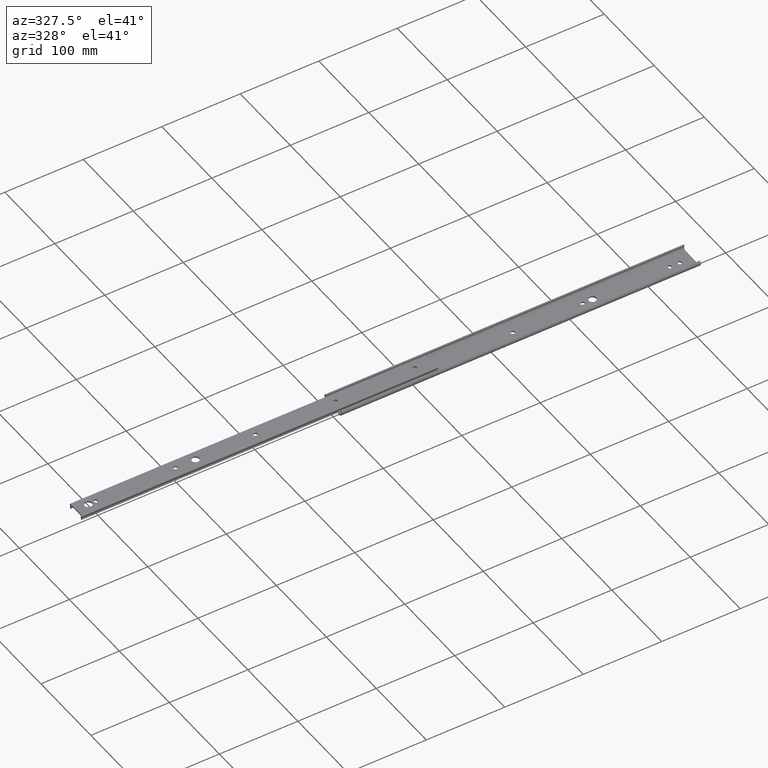
[diagram: clean part render]
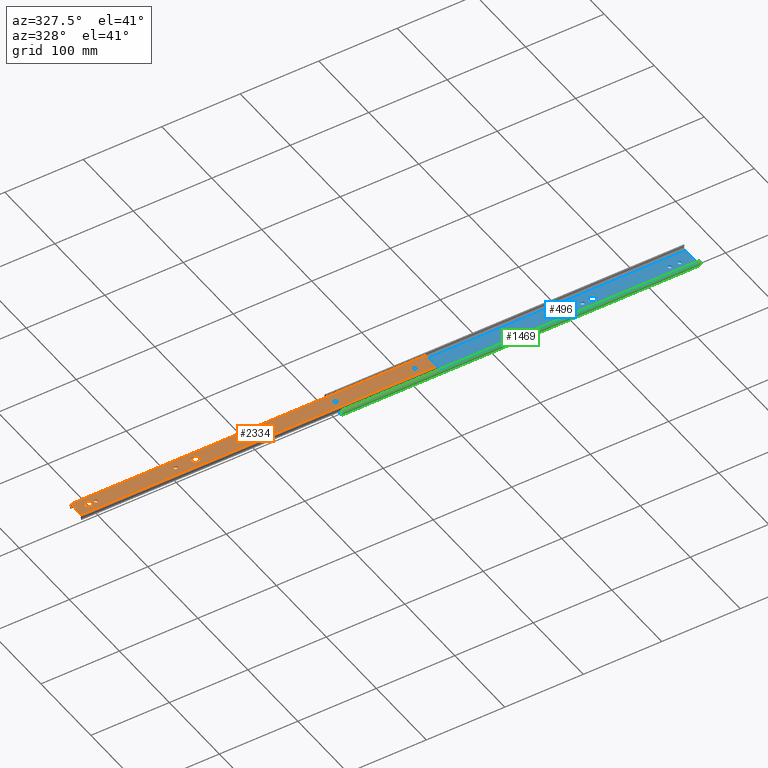
[diagram: same view with three faces highlighted in distinct colors, each labeled with its STEP entity id]
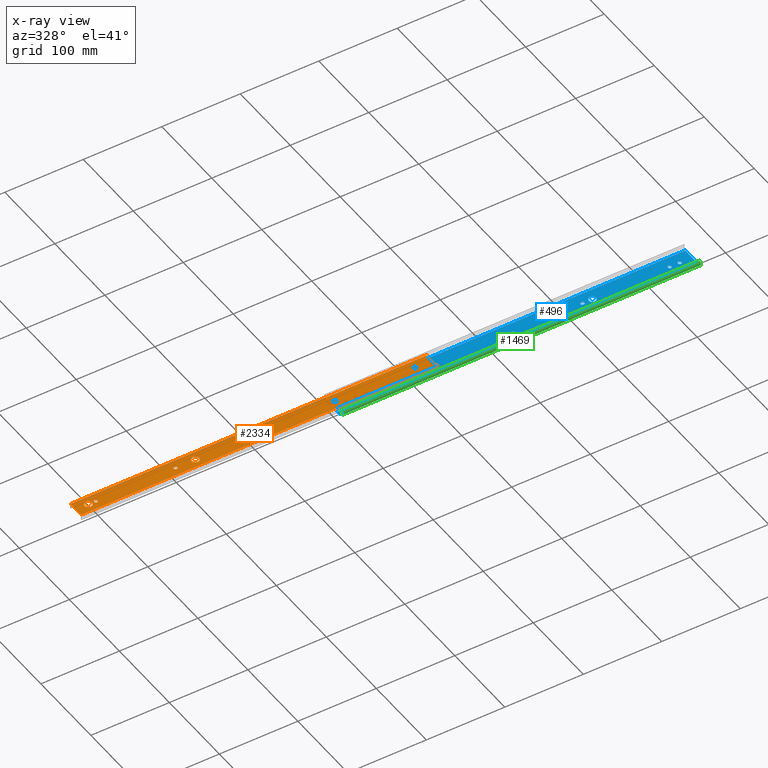
[diagram: x-ray of the same camera — body ghosted, the three highlighted faces saturated]
A machine part, auxiliary view with three faces highlighted in distinct colors.
The next image is the same camera in x-ray (body ghosted, the three faces saturated) — at least one of them is partly hidden behind the body in this view.
Their STEP definitions:

[orange] entity #2334 — the highlighted planar face has unit normal (0, 0, 1).
#18 = ORIENTED_EDGE ( 'NONE', *, *, #1851, .T. ) ;
#39 = EDGE_CURVE ( 'NONE', #1172, #1945, #3956, .T. ) ;
#46 = CARTESIAN_POINT ( 'NONE',  ( 329.7999999999999500, -2.250000000000045700, 0.0000000000000000000 ) ) ;
#47 = CARTESIAN_POINT ( 'NONE',  ( 454.1999999999999900, -9.800000000000007800, 0.0000000000000000000 ) ) ;
#51 = CARTESIAN_POINT ( 'NONE',  ( 454.1999999999999900, -10.42509259386300400, 2.168404344971008900E-016 ) ) ;
#65 = DIRECTION ( 'NONE',  ( 0.0000000000000000000, 0.0000000000000000000, 1.000000000000000000 ) ) ;
#76 = CARTESIAN_POINT ( 'NONE',  ( 127.4000000000000200, 2.574876320130218100E-015, 0.0000000000000000000 ) ) ;
#90 = CARTESIAN_POINT ( 'NONE',  ( 452.6000000000000200, -8.200000000000001100, 0.0000000000000000000 ) ) ;
#103 = AXIS2_PLACEMENT_3D ( 'NONE', #3161, #1230, #3472 ) ;
#117 = ORIENTED_EDGE ( 'NONE', *, *, #2353, .F. ) ;
#139 = ORIENTED_EDGE ( 'NONE', *, *, #569, .F. ) ;
#146 = CARTESIAN_POINT ( 'NONE',  ( 434.0499999999999500, 0.4000000000000183400, 0.0000000000000000000 ) ) ;
#153 = LINE ( 'NONE', #1464, #4102 ) ;
#154 = ORIENTED_EDGE ( 'NONE', *, *, #3700, .F. ) ;
#165 = ORIENTED_EDGE ( 'NONE', *, *, #3771, .F. ) ;
#179 = CARTESIAN_POINT ( 'NONE',  ( 0.0000000000000000000, -10.42509259386300400, 2.168404344971008900E-016 ) ) ;
#180 = DIRECTION ( 'NONE',  ( 0.0000000000000000000, 0.0000000000000000000, 1.000000000000000000 ) ) ;
#187 = EDGE_CURVE ( 'NONE', #384, #4130, #153, .T. ) ;
#197 = VECTOR ( 'NONE', #1928, 1000.000000000000000 ) ;
#204 = DIRECTION ( 'NONE',  ( 0.0000000000000000000, 0.0000000000000000000, 1.000000000000000000 ) ) ;
#210 = VERTEX_POINT ( 'NONE', #790 ) ;
#213 = VERTEX_POINT ( 'NONE', #3338 ) ;
#227 = CARTESIAN_POINT ( 'NONE',  ( 431.7999999999999500, 0.3999999999999774300, 0.0000000000000000000 ) ) ;
#232 = LINE ( 'NONE', #2865, #3451 ) ;
#241 = CARTESIAN_POINT ( 'NONE',  ( 434.0499999999999500, -0.4000000000000183400, 0.0000000000000000000 ) ) ;
#273 = CARTESIAN_POINT ( 'NONE',  ( 129.6500000000000100, 2.574876320130218100E-015, 0.0000000000000000000 ) ) ;
#290 = ORIENTED_EDGE ( 'NONE', *, *, #1862, .F. ) ;
#336 = DIRECTION ( 'NONE',  ( 0.0000000000000000000, 0.0000000000000000000, 1.000000000000000000 ) ) ;
#370 = VECTOR ( 'NONE', #2519, 1000.000000000000000 ) ;
#378 = DIRECTION ( 'NONE',  ( 1.000000000000000000, 0.0000000000000000000, 0.0000000000000000000 ) ) ;
#379 = DIRECTION ( 'NONE',  ( 1.000000000000000000, -0.0000000000000000000, -0.0000000000000000000 ) ) ;
#384 = VERTEX_POINT ( 'NONE', #90 ) ;
#405 = DIRECTION ( 'NONE',  ( 1.000000000000000000, 0.0000000000000000000, 0.0000000000000000000 ) ) ;
#416 = EDGE_LOOP ( 'NONE', ( #2393, #290, #2129, #1826, #2781 ) ) ;
#424 = CARTESIAN_POINT ( 'NONE',  ( 11.15000000000000000, 5.817072295949927400E-016, 0.0000000000000000000 ) ) ;
#457 = CARTESIAN_POINT ( 'NONE',  ( 454.1999999999999900, 0.0000000000000000000, 0.0000000000000000000 ) ) ;
#463 = VERTEX_POINT ( 'NONE', #1726 ) ;
#482 = VECTOR ( 'NONE', #638, 1000.000000000000000 ) ;
#494 = LINE ( 'NONE', #1949, #1233 ) ;
#495 = AXIS2_PLACEMENT_3D ( 'NONE', #2123, #180, #2442 ) ;
#498 = VECTOR ( 'NONE', #1127, 1000.000000000000000 ) ;
#562 = CARTESIAN_POINT ( 'NONE',  ( 452.6000000000000200, 9.799999999999993600, 0.0000000000000000000 ) ) ;
#566 = DIRECTION ( 'NONE',  ( 1.000000000000000000, 0.0000000000000000000, 0.0000000000000000000 ) ) ;
#569 = EDGE_CURVE ( 'NONE', #1945, #2256, #1658, .T. ) ;
#576 = VERTEX_POINT ( 'NONE', #1291 ) ;
#587 = LINE ( 'NONE', #1215, #370 ) ;
#590 = DIRECTION ( 'NONE',  ( 1.000000000000000000, 0.0000000000000000000, 0.0000000000000000000 ) ) ;
#595 = CARTESIAN_POINT ( 'NONE',  ( 229.0000000000000000, -2.249999999999997300, 0.0000000000000000000 ) ) ;
#621 = EDGE_CURVE ( 'NONE', #2153, #1231, #709, .T. ) ;
#628 = CARTESIAN_POINT ( 'NONE',  ( 228.1999999999999900, 2.249999999999968900, 0.0000000000000000000 ) ) ;
#638 = DIRECTION ( 'NONE',  ( -1.000000000000000000, -0.0000000000000000000, -0.0000000000000000000 ) ) ;
#645 = VECTOR ( 'NONE', #1044, 1000.000000000000000 ) ;
#651 = DIRECTION ( 'NONE',  ( 0.0000000000000000000, 0.0000000000000000000, 1.000000000000000000 ) ) ;
#661 = AXIS2_PLACEMENT_3D ( 'NONE', #2910, #3603, #1944 ) ;
#676 = LINE ( 'NONE', #1599, #482 ) ;
#698 = CIRCLE ( 'NONE', #3330, 2.249999999999974200 ) ;
#705 = AXIS2_PLACEMENT_3D ( 'NONE', #2151, #204, #2473 ) ;
#709 = LINE ( 'NONE', #4129, #2320 ) ;
#728 = EDGE_LOOP ( 'NONE', ( #2096, #117, #2287, #3366 ) ) ;
#730 = EDGE_CURVE ( 'NONE', #3087, #3264, #2973, .T. ) ;
#731 = DIRECTION ( 'NONE',  ( 1.000000000000000000, 0.0000000000000000000, 0.0000000000000000000 ) ) ;
#744 = FACE_BOUND ( 'NONE', #2533, .T. ) ;
#753 = CARTESIAN_POINT ( 'NONE',  ( 332.8500000000000200, 4.625374685507152800E-014, 0.0000000000000000000 ) ) ;
#768 = ORIENTED_EDGE ( 'NONE', *, *, #3332, .F. ) ;
#776 = DIRECTION ( 'NONE',  ( -1.000000000000000000, -0.0000000000000000000, -0.0000000000000000000 ) ) ;
#784 = EDGE_CURVE ( 'NONE', #3351, #2153, #2125, .T. ) ;
#790 = CARTESIAN_POINT ( 'NONE',  ( 231.2500000000000000, 2.412649031546223800E-015, 0.0000000000000000000 ) ) ;
#827 = DIRECTION ( 'NONE',  ( 0.0000000000000000000, 0.0000000000000000000, 1.000000000000000000 ) ) ;
#851 = FACE_BOUND ( 'NONE', #1366, .T. ) ;
#860 = VECTOR ( 'NONE', #1519, 1000.000000000000000 ) ;
#864 = DIRECTION ( 'NONE',  ( 0.0000000000000000000, 0.0000000000000000000, 1.000000000000000000 ) ) ;
#869 = CARTESIAN_POINT ( 'NONE',  ( 454.1999999999999900, -9.800000000000007800, 0.0000000000000000000 ) ) ;
#888 = CARTESIAN_POINT ( 'NONE',  ( 454.1999999999999900, -10.42509259386300400, 2.168404344971008900E-016 ) ) ;
#892 = CARTESIAN_POINT ( 'NONE',  ( 429.5500000000000100, -0.4000000000000183400, 0.0000000000000000000 ) ) ;
#898 = AXIS2_PLACEMENT_3D ( 'NONE', #3337, #1420, #3652 ) ;
#916 = EDGE_CURVE ( 'NONE', #3381, #3087, #3846, .T. ) ;
#921 = CARTESIAN_POINT ( 'NONE',  ( 329.7999999999999500, -2.250000000000045700, 0.0000000000000000000 ) ) ;
#934 = CIRCLE ( 'NONE', #2920, 2.250000000000001800 ) ;
#974 = VECTOR ( 'NONE', #378, 1000.000000000000000 ) ;
#1044 = DIRECTION ( 'NONE',  ( -0.0000000000000000000, 1.000000000000000000, -0.0000000000000000000 ) ) ;
#1045 = CARTESIAN_POINT ( 'NONE',  ( 15.90000000000000000, 0.0000000000000000000, 0.0000000000000000000 ) ) ;
#1080 = CARTESIAN_POINT ( 'NONE',  ( 127.4000000000000200, 2.249999999999993800, 0.0000000000000000000 ) ) ;
#1127 = DIRECTION ( 'NONE',  ( 0.0000000000000000000, -1.000000000000000000, 0.0000000000000000000 ) ) ;
#1146 = VECTOR ( 'NONE', #2823, 1000.000000000000000 ) ;
#1170 = CARTESIAN_POINT ( 'NONE',  ( 25.39999999999999900, 0.3999999999999960800, 0.0000000000000000000 ) ) ;
#1172 = VERTEX_POINT ( 'NONE', #1080 ) ;
#1175 = CARTESIAN_POINT ( 'NONE',  ( 27.65000000000000200, 0.3999999999999960800, 0.0000000000000000000 ) ) ;
#1178 = ORIENTED_EDGE ( 'NONE', *, *, #3278, .F. ) ;
#1185 = AXIS2_PLACEMENT_3D ( 'NONE', #2574, #651, #2900 ) ;
#1186 = DIRECTION ( 'NONE',  ( 0.0000000000000000000, -1.000000000000000000, 0.0000000000000000000 ) ) ;
#1206 = ORIENTED_EDGE ( 'NONE', *, *, #621, .F. ) ;
#1211 = CARTESIAN_POINT ( 'NONE',  ( 126.5999999999999900, 2.249999999999993800, 0.0000000000000000000 ) ) ;
#1215 = CARTESIAN_POINT ( 'NONE',  ( 454.1999999999999900, 0.0000000000000000000, 0.0000000000000000000 ) ) ;
#1221 = ORIENTED_EDGE ( 'NONE', *, *, #2997, .F. ) ;
#1226 = VERTEX_POINT ( 'NONE', #146 ) ;
#1230 = DIRECTION ( 'NONE',  ( 0.0000000000000000000, 0.0000000000000000000, 1.000000000000000000 ) ) ;
#1231 = VERTEX_POINT ( 'NONE', #3749 ) ;
#1233 = VECTOR ( 'NONE', #1298, 1000.000000000000000 ) ;
#1234 = EDGE_CURVE ( 'NONE', #3422, #2391, #1713, .T. ) ;
#1268 = CIRCLE ( 'NONE', #898, 2.250000000000001800 ) ;
#1269 = CARTESIAN_POINT ( 'NONE',  ( 454.1999999999999900, 9.799999999999993600, 0.0000000000000000000 ) ) ;
#1272 = VECTOR ( 'NONE', #4042, 1000.000000000000000 ) ;
#1291 = CARTESIAN_POINT ( 'NONE',  ( 229.0000000000000000, 2.249999999999968900, 0.0000000000000000000 ) ) ;
#1297 = CARTESIAN_POINT ( 'NONE',  ( 454.1999999999999900, 9.799999999999993600, 0.0000000000000000000 ) ) ;
#1298 = DIRECTION ( 'NONE',  ( 0.0000000000000000000, 1.000000000000000000, 0.0000000000000000000 ) ) ;
#1307 = ORIENTED_EDGE ( 'NONE', *, *, #1818, .F. ) ;
#1323 = VECTOR ( 'NONE', #3830, 1000.000000000000000 ) ;
#1330 = ORIENTED_EDGE ( 'NONE', *, *, #3389, .T. ) ;
#1344 = ORIENTED_EDGE ( 'NONE', *, *, #3799, .F. ) ;
#1359 = DIRECTION ( 'NONE',  ( 1.000000000000000000, 0.0000000000000000000, -0.0000000000000000000 ) ) ;
#1361 = DIRECTION ( 'NONE',  ( 1.000000000000000000, 0.0000000000000000000, 0.0000000000000000000 ) ) ;
#1366 = EDGE_LOOP ( 'NONE', ( #139, #3169, #3320, #154, #2725 ) ) ;
#1387 = AXIS2_PLACEMENT_3D ( 'NONE', #3782, #2296, #3823 ) ;
#1409 = CARTESIAN_POINT ( 'NONE',  ( 429.5500000000000100, 0.4000000000000186200, 0.0000000000000000000 ) ) ;
#1420 = DIRECTION ( 'NONE',  ( 0.0000000000000000000, 0.0000000000000000000, 1.000000000000000000 ) ) ;
#1433 = AXIS2_PLACEMENT_3D ( 'NONE', #2008, #65, #2333 ) ;
#1437 = DIRECTION ( 'NONE',  ( 0.0000000000000000000, -1.000000000000000000, 0.0000000000000000000 ) ) ;
#1464 = CARTESIAN_POINT ( 'NONE',  ( 452.6000000000000200, 9.799999999999993600, 0.0000000000000000000 ) ) ;
#1467 = CARTESIAN_POINT ( 'NONE',  ( 228.1999999999999900, -2.250000000000030600, 0.0000000000000000000 ) ) ;
#1473 = EDGE_LOOP ( 'NONE', ( #4087, #2289 ) ) ;
#1500 = FACE_OUTER_BOUND ( 'NONE', #2543, .T. ) ;
#1517 = VERTEX_POINT ( 'NONE', #4079 ) ;
#1519 = DIRECTION ( 'NONE',  ( 0.0000000000000000000, -1.000000000000000000, 0.0000000000000000000 ) ) ;
#1549 = DIRECTION ( 'NONE',  ( -0.0000000000000000000, 1.000000000000000000, -0.0000000000000000000 ) ) ;
#1579 = VERTEX_POINT ( 'NONE', #241 ) ;
#1592 = FACE_BOUND ( 'NONE', #416, .T. ) ;
#1599 = CARTESIAN_POINT ( 'NONE',  ( 228.1999999999999900, 2.249999999999968900, 0.0000000000000000000 ) ) ;
#1608 = EDGE_CURVE ( 'NONE', #2303, #2441, #2262, .T. ) ;
#1612 = EDGE_CURVE ( 'NONE', #463, #3616, #2166, .T. ) ;
#1658 = CIRCLE ( 'NONE', #3604, 2.250000000000001800 ) ;
#1693 = VECTOR ( 'NONE', #2976, 1000.000000000000000 ) ;
#1695 = CARTESIAN_POINT ( 'NONE',  ( 434.0499999999999500, 0.4000000000000183400, 0.0000000000000000000 ) ) ;
#1705 = EDGE_CURVE ( 'NONE', #384, #3519, #232, .T. ) ;
#1713 = LINE ( 'NONE', #3778, #860 ) ;
#1726 = CARTESIAN_POINT ( 'NONE',  ( 157.1500000000000100, 0.0000000000000000000, 0.0000000000000000000 ) ) ;
#1777 = CARTESIAN_POINT ( 'NONE',  ( 126.5999999999999400, -2.250000000000005800, 0.0000000000000000000 ) ) ;
#1779 = EDGE_CURVE ( 'NONE', #213, #1517, #3248, .T. ) ;
#1785 = EDGE_CURVE ( 'NONE', #2958, #3519, #2414, .T. ) ;
#1800 = CIRCLE ( 'NONE', #1433, 4.750000000000004400 ) ;
#1818 = EDGE_CURVE ( 'NONE', #2391, #1579, #698, .T. ) ;
#1826 = ORIENTED_EDGE ( 'NONE', *, *, #916, .F. ) ;
#1837 = ORIENTED_EDGE ( 'NONE', *, *, #1705, .T. ) ;
#1851 = EDGE_CURVE ( 'NONE', #3587, #1231, #3693, .T. ) ;
#1856 = VERTEX_POINT ( 'NONE', #869 ) ;
#1862 = EDGE_CURVE ( 'NONE', #3264, #2303, #3591, .T. ) ;
#1900 = LINE ( 'NONE', #47, #3484 ) ;
#1907 = CARTESIAN_POINT ( 'NONE',  ( 229.0000000000000000, 2.412649031546223800E-015, 0.0000000000000000000 ) ) ;
#1910 = DIRECTION ( 'NONE',  ( 1.000000000000000000, 0.0000000000000000000, 0.0000000000000000000 ) ) ;
#1928 = DIRECTION ( 'NONE',  ( -1.000000000000000000, -0.0000000000000000000, -0.0000000000000000000 ) ) ;
#1933 = CARTESIAN_POINT ( 'NONE',  ( 127.4000000000000200, -2.249999999999997300, 0.0000000000000000000 ) ) ;
#1944 = DIRECTION ( 'NONE',  ( 1.000000000000000000, 0.0000000000000000000, 0.0000000000000000000 ) ) ;
#1945 = VERTEX_POINT ( 'NONE', #1211 ) ;
#1949 = CARTESIAN_POINT ( 'NONE',  ( 454.1999999999999900, 0.0000000000000000000, 0.0000000000000000000 ) ) ;
#1986 = ORIENTED_EDGE ( 'NONE', *, *, #784, .F. ) ;
#2008 = CARTESIAN_POINT ( 'NONE',  ( 152.4000000000000100, 0.0000000000000000000, 0.0000000000000000000 ) ) ;
#2027 = DIRECTION ( 'NONE',  ( 0.0000000000000000000, 0.0000000000000000000, 1.000000000000000000 ) ) ;
#2041 = CIRCLE ( 'NONE', #2411, 4.750000000000000900 ) ;
#2055 = AXIS2_PLACEMENT_3D ( 'NONE', #1170, #336, #590 ) ;
#2063 = PLANE ( 'NONE',  #2965 ) ;
#2089 = VERTEX_POINT ( 'NONE', #424 ) ;
#2096 = ORIENTED_EDGE ( 'NONE', *, *, #1779, .F. ) ;
#2123 = CARTESIAN_POINT ( 'NONE',  ( 25.39999999999999900, -0.3999999999999999700, 0.0000000000000000000 ) ) ;
#2125 = LINE ( 'NONE', #51, #197 ) ;
#2129 = ORIENTED_EDGE ( 'NONE', *, *, #730, .F. ) ;
#2151 = CARTESIAN_POINT ( 'NONE',  ( 15.90000000000000000, 0.0000000000000000000, 0.0000000000000000000 ) ) ;
#2153 = VERTEX_POINT ( 'NONE', #179 ) ;
#2154 = CARTESIAN_POINT ( 'NONE',  ( 147.6500000000000100, 5.817072295949932400E-016, 0.0000000000000000000 ) ) ;
#2159 = LINE ( 'NONE', #2537, #3009 ) ;
#2166 = CIRCLE ( 'NONE', #3826, 4.750000000000004400 ) ;
#2218 = AXIS2_PLACEMENT_3D ( 'NONE', #227, #2493, #566 ) ;
#2226 = DIRECTION ( 'NONE',  ( 1.000000000000000000, 0.0000000000000000000, 0.0000000000000000000 ) ) ;
#2240 = VERTEX_POINT ( 'NONE', #3039 ) ;
#2242 = EDGE_CURVE ( 'NONE', #1517, #2240, #3883, .T. ) ;
#2256 = VERTEX_POINT ( 'NONE', #1777 ) ;
#2262 = CIRCLE ( 'NONE', #3617, 2.249999999999974200 ) ;
#2287 = ORIENTED_EDGE ( 'NONE', *, *, #3213, .F. ) ;
#2289 = ORIENTED_EDGE ( 'NONE', *, *, #3012, .F. ) ;
#2296 = DIRECTION ( 'NONE',  ( 0.0000000000000000000, 0.0000000000000000000, 1.000000000000000000 ) ) ;
#2300 = CARTESIAN_POINT ( 'NONE',  ( 329.7999999999999500, 9.460167886830102500E-027, 0.0000000000000000000 ) ) ;
#2303 = VERTEX_POINT ( 'NONE', #2458 ) ;
#2310 = ORIENTED_EDGE ( 'NONE', *, *, #1234, .F. ) ;
#2314 = VECTOR ( 'NONE', #1186, 1000.000000000000000 ) ;
#2316 = CARTESIAN_POINT ( 'NONE',  ( 20.65000000000000200, 0.0000000000000000000, 0.0000000000000000000 ) ) ;
#2320 = VECTOR ( 'NONE', #3033, 1000.000000000000000 ) ;
#2333 = DIRECTION ( 'NONE',  ( 1.000000000000000000, 0.0000000000000000000, 0.0000000000000000000 ) ) ;
#2334 = ADVANCED_FACE ( 'NONE', ( #1592, #2461, #851, #744, #4034, #3201, #2366, #1500 ), #2063, .T. ) ;
#2342 = DIRECTION ( 'NONE',  ( 0.0000000000000000000, 0.0000000000000000000, 1.000000000000000000 ) ) ;
#2343 = ORIENTED_EDGE ( 'NONE', *, *, #2563, .T. ) ;
#2353 = EDGE_CURVE ( 'NONE', #2748, #213, #3937, .T. ) ;
#2366 = FACE_BOUND ( 'NONE', #4112, .T. ) ;
#2391 = VERTEX_POINT ( 'NONE', #892 ) ;
#2393 = ORIENTED_EDGE ( 'NONE', *, *, #1608, .F. ) ;
#2411 = AXIS2_PLACEMENT_3D ( 'NONE', #1045, #3287, #1361 ) ;
#2414 = LINE ( 'NONE', #562, #2314 ) ;
#2441 = VERTEX_POINT ( 'NONE', #921 ) ;
#2442 = DIRECTION ( 'NONE',  ( 1.000000000000000000, 0.0000000000000000000, 0.0000000000000000000 ) ) ;
#2458 = CARTESIAN_POINT ( 'NONE',  ( 329.7999999999999500, 2.249999999999953800, 0.0000000000000000000 ) ) ;
#2461 = FACE_BOUND ( 'NONE', #4006, .T. ) ;
#2473 = DIRECTION ( 'NONE',  ( 1.000000000000000000, 0.0000000000000000000, 0.0000000000000000000 ) ) ;
#2493 = DIRECTION ( 'NONE',  ( 0.0000000000000000000, 0.0000000000000000000, 1.000000000000000000 ) ) ;
#2519 = DIRECTION ( 'NONE',  ( 0.0000000000000000000, 1.000000000000000000, 0.0000000000000000000 ) ) ;
#2525 = VERTEX_POINT ( 'NONE', #1933 ) ;
#2533 = EDGE_LOOP ( 'NONE', ( #768, #3220, #1307, #2310 ) ) ;
#2537 = CARTESIAN_POINT ( 'NONE',  ( 228.1999999999999900, -2.250000000000030600, 0.0000000000000000000 ) ) ;
#2542 = CARTESIAN_POINT ( 'NONE',  ( 454.1999999999999900, 10.42509259386300400, 2.168404344971008900E-016 ) ) ;
#2543 = EDGE_LOOP ( 'NONE', ( #2783, #1837, #2849, #165, #1330, #18, #1206, #1986, #2343, #1221 ) ) ;
#2563 = EDGE_CURVE ( 'NONE', #3351, #1856, #494, .T. ) ;
#2574 = CARTESIAN_POINT ( 'NONE',  ( 229.0000000000000000, 2.412649031546223800E-015, 0.0000000000000000000 ) ) ;
#2687 = LINE ( 'NONE', #46, #974 ) ;
#2700 = CIRCLE ( 'NONE', #705, 4.750000000000000900 ) ;
#2725 = ORIENTED_EDGE ( 'NONE', *, *, #3620, .F. ) ;
#2734 = CARTESIAN_POINT ( 'NONE',  ( 23.14999999999999900, 0.3999999999999951400, 0.0000000000000000000 ) ) ;
#2748 = VERTEX_POINT ( 'NONE', #2766 ) ;
#2763 = VECTOR ( 'NONE', #2876, 1000.000000000000000 ) ;
#2766 = CARTESIAN_POINT ( 'NONE',  ( 27.65000000000000200, -0.3999999999999999700, 0.0000000000000000000 ) ) ;
#2769 = CARTESIAN_POINT ( 'NONE',  ( 329.7999999999999500, 2.249999999999953800, 0.0000000000000000000 ) ) ;
#2781 = ORIENTED_EDGE ( 'NONE', *, *, #4117, .F. ) ;
#2783 = ORIENTED_EDGE ( 'NONE', *, *, #187, .F. ) ;
#2792 = CARTESIAN_POINT ( 'NONE',  ( 126.5999999999999900, -2.250000000000005800, 0.0000000000000000000 ) ) ;
#2815 = EDGE_CURVE ( 'NONE', #3556, #3393, #2159, .T. ) ;
#2823 = DIRECTION ( 'NONE',  ( -1.000000000000000000, -0.0000000000000000000, -0.0000000000000000000 ) ) ;
#2834 = VERTEX_POINT ( 'NONE', #628 ) ;
#2849 = ORIENTED_EDGE ( 'NONE', *, *, #1785, .F. ) ;
#2857 = ORIENTED_EDGE ( 'NONE', *, *, #2815, .F. ) ;
#2865 = CARTESIAN_POINT ( 'NONE',  ( 452.6000000000000200, 0.0000000000000000000, 0.0000000000000000000 ) ) ;
#2876 = DIRECTION ( 'NONE',  ( -1.000000000000000000, -0.0000000000000000000, -0.0000000000000000000 ) ) ;
#2900 = DIRECTION ( 'NONE',  ( 1.000000000000000000, 0.0000000000000000000, 0.0000000000000000000 ) ) ;
#2910 = CARTESIAN_POINT ( 'NONE',  ( 330.6000000000000800, 4.625374685507152800E-014, 0.0000000000000000000 ) ) ;
#2920 = AXIS2_PLACEMENT_3D ( 'NONE', #76, #2342, #405 ) ;
#2955 = CARTESIAN_POINT ( 'NONE',  ( 126.5999999999999900, 2.249999999999993800, 0.0000000000000000000 ) ) ;
#2958 = VERTEX_POINT ( 'NONE', #3845 ) ;
#2960 = ORIENTED_EDGE ( 'NONE', *, *, #3730, .F. ) ;
#2965 = AXIS2_PLACEMENT_3D ( 'NONE', #457, #864, #1359 ) ;
#2968 = CARTESIAN_POINT ( 'NONE',  ( 152.4000000000000100, 0.0000000000000000000, 0.0000000000000000000 ) ) ;
#2973 = CIRCLE ( 'NONE', #1387, 2.249999999999974200 ) ;
#2976 = DIRECTION ( 'NONE',  ( -0.0000000000000000000, 1.000000000000000000, -0.0000000000000000000 ) ) ;
#2981 = ORIENTED_EDGE ( 'NONE', *, *, #3800, .F. ) ;
#2987 = ORIENTED_EDGE ( 'NONE', *, *, #4152, .F. ) ;
#2997 = EDGE_CURVE ( 'NONE', #4130, #1856, #1900, .T. ) ;
#2999 = LINE ( 'NONE', #2792, #1272 ) ;
#3009 = VECTOR ( 'NONE', #1910, 1000.000000000000000 ) ;
#3012 = EDGE_CURVE ( 'NONE', #3616, #463, #1800, .T. ) ;
#3033 = DIRECTION ( 'NONE',  ( 0.0000000000000000000, 1.000000000000000000, 0.0000000000000000000 ) ) ;
#3039 = CARTESIAN_POINT ( 'NONE',  ( 23.14999999999999900, -0.3999999999999946900, 0.0000000000000000000 ) ) ;
#3049 = EDGE_CURVE ( 'NONE', #1579, #1226, #4127, .T. ) ;
#3056 = CARTESIAN_POINT ( 'NONE',  ( 452.6000000000000200, 8.199999999999999300, 0.0000000000000000000 ) ) ;
#3084 = CARTESIAN_POINT ( 'NONE',  ( 454.1999999999999900, 10.42509259386300400, 2.168404344971008900E-016 ) ) ;
#3087 = VERTEX_POINT ( 'NONE', #753 ) ;
#3122 = VECTOR ( 'NONE', #776, 1000.000000000000000 ) ;
#3142 = CIRCLE ( 'NONE', #2218, 2.249999999999974200 ) ;
#3161 = CARTESIAN_POINT ( 'NONE',  ( 127.4000000000000200, 2.574876320130218100E-015, 0.0000000000000000000 ) ) ;
#3169 = ORIENTED_EDGE ( 'NONE', *, *, #39, .F. ) ;
#3201 = FACE_BOUND ( 'NONE', #1473, .T. ) ;
#3213 = EDGE_CURVE ( 'NONE', #2240, #2748, #3529, .T. ) ;
#3220 = ORIENTED_EDGE ( 'NONE', *, *, #3049, .F. ) ;
#3248 = CIRCLE ( 'NONE', #2055, 2.250000000000001800 ) ;
#3264 = VERTEX_POINT ( 'NONE', #4023 ) ;
#3278 = EDGE_CURVE ( 'NONE', #3911, #2089, #2700, .T. ) ;
#3287 = DIRECTION ( 'NONE',  ( 0.0000000000000000000, 0.0000000000000000000, 1.000000000000000000 ) ) ;
#3320 = ORIENTED_EDGE ( 'NONE', *, *, #3962, .F. ) ;
#3330 = AXIS2_PLACEMENT_3D ( 'NONE', #3504, #827, #3442 ) ;
#3332 = EDGE_CURVE ( 'NONE', #1226, #3422, #3142, .T. ) ;
#3335 = CIRCLE ( 'NONE', #103, 2.250000000000001800 ) ;
#3337 = CARTESIAN_POINT ( 'NONE',  ( 228.1999999999999900, 2.265691415648536800E-015, 0.0000000000000000000 ) ) ;
#3338 = CARTESIAN_POINT ( 'NONE',  ( 27.65000000000000200, 0.3999999999999960800, 0.0000000000000000000 ) ) ;
#3351 = VERTEX_POINT ( 'NONE', #888 ) ;
#3366 = ORIENTED_EDGE ( 'NONE', *, *, #2242, .F. ) ;
#3381 = VERTEX_POINT ( 'NONE', #3457 ) ;
#3389 = EDGE_CURVE ( 'NONE', #3860, #3587, #587, .T. ) ;
#3393 = VERTEX_POINT ( 'NONE', #595 ) ;
#3422 = VERTEX_POINT ( 'NONE', #1409 ) ;
#3442 = DIRECTION ( 'NONE',  ( 1.000000000000000000, 0.0000000000000000000, 0.0000000000000000000 ) ) ;
#3451 = VECTOR ( 'NONE', #1549, 1000.000000000000000 ) ;
#3457 = CARTESIAN_POINT ( 'NONE',  ( 330.6000000000000800, -2.249999999999953400, 0.0000000000000000000 ) ) ;
#3472 = DIRECTION ( 'NONE',  ( 1.000000000000000000, 0.0000000000000000000, 0.0000000000000000000 ) ) ;
#3484 = VECTOR ( 'NONE', #379, 1000.000000000000000 ) ;
#3504 = CARTESIAN_POINT ( 'NONE',  ( 431.7999999999999500, -0.4000000000000186200, 0.0000000000000000000 ) ) ;
#3519 = VERTEX_POINT ( 'NONE', #3056 ) ;
#3529 = CIRCLE ( 'NONE', #495, 2.250000000000001800 ) ;
#3537 = DIRECTION ( 'NONE',  ( 0.0000000000000000000, 0.0000000000000000000, 1.000000000000000000 ) ) ;
#3556 = VERTEX_POINT ( 'NONE', #1467 ) ;
#3587 = VERTEX_POINT ( 'NONE', #3084 ) ;
#3591 = LINE ( 'NONE', #2769, #2763 ) ;
#3603 = DIRECTION ( 'NONE',  ( 0.0000000000000000000, 0.0000000000000000000, 1.000000000000000000 ) ) ;
#3604 = AXIS2_PLACEMENT_3D ( 'NONE', #3873, #3820, #3917 ) ;
#3616 = VERTEX_POINT ( 'NONE', #2154 ) ;
#3617 = AXIS2_PLACEMENT_3D ( 'NONE', #2300, #2027, #731 ) ;
#3620 = EDGE_CURVE ( 'NONE', #2256, #2525, #2999, .T. ) ;
#3652 = DIRECTION ( 'NONE',  ( 1.000000000000000000, 0.0000000000000000000, 0.0000000000000000000 ) ) ;
#3693 = LINE ( 'NONE', #2542, #1146 ) ;
#3700 = EDGE_CURVE ( 'NONE', #2525, #3716, #3335, .T. ) ;
#3711 = ORIENTED_EDGE ( 'NONE', *, *, #4044, .F. ) ;
#3716 = VERTEX_POINT ( 'NONE', #273 ) ;
#3730 = EDGE_CURVE ( 'NONE', #3393, #210, #4070, .T. ) ;
#3749 = CARTESIAN_POINT ( 'NONE',  ( 0.0000000000000000000, 10.42509259386300400, 2.168404344971008900E-016 ) ) ;
#3756 = DIRECTION ( 'NONE',  ( 1.000000000000000000, 0.0000000000000000000, 0.0000000000000000000 ) ) ;
#3771 = EDGE_CURVE ( 'NONE', #3860, #2958, #3976, .T. ) ;
#3778 = CARTESIAN_POINT ( 'NONE',  ( 429.5500000000000100, 0.4000000000000186200, 0.0000000000000000000 ) ) ;
#3782 = CARTESIAN_POINT ( 'NONE',  ( 330.6000000000000800, 4.625374685507152800E-014, 0.0000000000000000000 ) ) ;
#3799 = EDGE_CURVE ( 'NONE', #210, #576, #3869, .T. ) ;
#3800 = EDGE_CURVE ( 'NONE', #576, #2834, #676, .T. ) ;
#3820 = DIRECTION ( 'NONE',  ( 0.0000000000000000000, 0.0000000000000000000, 1.000000000000000000 ) ) ;
#3823 = DIRECTION ( 'NONE',  ( 1.000000000000000000, 0.0000000000000000000, 0.0000000000000000000 ) ) ;
#3826 = AXIS2_PLACEMENT_3D ( 'NONE', #2968, #3537, #3756 ) ;
#3830 = DIRECTION ( 'NONE',  ( -1.000000000000000000, 0.0000000000000000000, 0.0000000000000000000 ) ) ;
#3845 = CARTESIAN_POINT ( 'NONE',  ( 452.6000000000000200, 9.799999999999993600, 0.0000000000000000000 ) ) ;
#3846 = CIRCLE ( 'NONE', #661, 2.249999999999974200 ) ;
#3860 = VERTEX_POINT ( 'NONE', #1297 ) ;
#3869 = CIRCLE ( 'NONE', #1185, 2.250000000000001800 ) ;
#3873 = CARTESIAN_POINT ( 'NONE',  ( 126.5999999999999900, 2.476904576198428100E-015, 0.0000000000000000000 ) ) ;
#3883 = LINE ( 'NONE', #2734, #498 ) ;
#3886 = CARTESIAN_POINT ( 'NONE',  ( 452.6000000000000200, -9.800000000000007800, 0.0000000000000000000 ) ) ;
#3911 = VERTEX_POINT ( 'NONE', #2316 ) ;
#3917 = DIRECTION ( 'NONE',  ( 1.000000000000000000, 0.0000000000000000000, 0.0000000000000000000 ) ) ;
#3937 = LINE ( 'NONE', #1175, #645 ) ;
#3956 = LINE ( 'NONE', #2955, #3122 ) ;
#3962 = EDGE_CURVE ( 'NONE', #3716, #1172, #934, .T. ) ;
#3976 = LINE ( 'NONE', #1269, #1323 ) ;
#4006 = EDGE_LOOP ( 'NONE', ( #3711, #2981, #1344, #2960, #2857 ) ) ;
#4023 = CARTESIAN_POINT ( 'NONE',  ( 330.6000000000000800, 2.249999999999953800, 0.0000000000000000000 ) ) ;
#4034 = FACE_BOUND ( 'NONE', #728, .T. ) ;
#4042 = DIRECTION ( 'NONE',  ( 1.000000000000000000, 0.0000000000000000000, 0.0000000000000000000 ) ) ;
#4044 = EDGE_CURVE ( 'NONE', #2834, #3556, #1268, .T. ) ;
#4047 = AXIS2_PLACEMENT_3D ( 'NONE', #1907, #4120, #2226 ) ;
#4070 = CIRCLE ( 'NONE', #4047, 2.250000000000001800 ) ;
#4079 = CARTESIAN_POINT ( 'NONE',  ( 23.15000000000000600, 0.3999999999999951400, 0.0000000000000000000 ) ) ;
#4087 = ORIENTED_EDGE ( 'NONE', *, *, #1612, .F. ) ;
#4102 = VECTOR ( 'NONE', #1437, 1000.000000000000000 ) ;
#4112 = EDGE_LOOP ( 'NONE', ( #1178, #2987 ) ) ;
#4117 = EDGE_CURVE ( 'NONE', #2441, #3381, #2687, .T. ) ;
#4120 = DIRECTION ( 'NONE',  ( 0.0000000000000000000, 0.0000000000000000000, 1.000000000000000000 ) ) ;
#4127 = LINE ( 'NONE', #1695, #1693 ) ;
#4129 = CARTESIAN_POINT ( 'NONE',  ( 0.0000000000000000000, 0.0000000000000000000, 0.0000000000000000000 ) ) ;
#4130 = VERTEX_POINT ( 'NONE', #3886 ) ;
#4152 = EDGE_CURVE ( 'NONE', #2089, #3911, #2041, .T. ) ;

[blue] entity #496 — the highlighted planar face has unit normal (0, 0, 1).
#5 = ORIENTED_EDGE ( 'NONE', *, *, #2509, .F. ) ;
#7 = ORIENTED_EDGE ( 'NONE', *, *, #131, .F. ) ;
#12 = EDGE_CURVE ( 'NONE', #3088, #684, #2481, .T. ) ;
#14 = VERTEX_POINT ( 'NONE', #2454 ) ;
#19 = LINE ( 'NONE', #3489, #893 ) ;
#74 = EDGE_CURVE ( 'NONE', #3473, #2674, #564, .T. ) ;
#75 = DIRECTION ( 'NONE',  ( 0.0000000000000000000, -1.000000000000000000, 0.0000000000000000000 ) ) ;
#84 = CIRCLE ( 'NONE', #228, 2.249999999999974200 ) ;
#91 = VECTOR ( 'NONE', #1997, 1000.000000000000000 ) ;
#95 = VECTOR ( 'NONE', #1337, 1000.000000000000000 ) ;
#113 = VERTEX_POINT ( 'NONE', #1985 ) ;
#114 = ORIENTED_EDGE ( 'NONE', *, *, #3694, .F. ) ;
#124 = CARTESIAN_POINT ( 'NONE',  ( 457.1999999999999900, 13.40000000000004700, 1.599999999999872400 ) ) ;
#128 = DIRECTION ( 'NONE',  ( 0.0000000000000000000, 0.0000000000000000000, 1.000000000000000000 ) ) ;
#131 = EDGE_CURVE ( 'NONE', #3466, #1611, #2927, .T. ) ;
#134 = AXIS2_PLACEMENT_3D ( 'NONE', #3553, #1649, #3871 ) ;
#158 = EDGE_LOOP ( 'NONE', ( #2243, #2576, #610, #1388 ) ) ;
#160 = VERTEX_POINT ( 'NONE', #3640 ) ;
#171 = CIRCLE ( 'NONE', #1560, 2.250000000000029800 ) ;
#191 = CARTESIAN_POINT ( 'NONE',  ( 129.6500000000000100, 1.579959826756716300E-014, 1.599999999999872400 ) ) ;
#211 = LINE ( 'NONE', #696, #3520 ) ;
#216 = ORIENTED_EDGE ( 'NONE', *, *, #4097, .T. ) ;
#225 = ORIENTED_EDGE ( 'NONE', *, *, #74, .F. ) ;
#226 = CIRCLE ( 'NONE', #3046, 2.250000000000001800 ) ;
#228 = AXIS2_PLACEMENT_3D ( 'NONE', #2528, #646, #553 ) ;
#229 = DIRECTION ( 'NONE',  ( 1.000000000000000000, 0.0000000000000000000, 0.0000000000000000000 ) ) ;
#246 = ORIENTED_EDGE ( 'NONE', *, *, #3770, .F. ) ;
#300 = DIRECTION ( 'NONE',  ( 0.0000000000000000000, 0.0000000000000000000, 1.000000000000000000 ) ) ;
#301 = DIRECTION ( 'NONE',  ( 0.0000000000000000000, 0.0000000000000000000, 1.000000000000000000 ) ) ;
#310 = EDGE_CURVE ( 'NONE', #684, #14, #2130, .T. ) ;
#313 = DIRECTION ( 'NONE',  ( 1.000000000000000000, 0.0000000000000000000, 0.0000000000000000000 ) ) ;
#319 = DIRECTION ( 'NONE',  ( 1.000000000000000000, 0.0000000000000000000, 0.0000000000000000000 ) ) ;
#337 = DIRECTION ( 'NONE',  ( 0.0000000000000000000, 1.000000000000000000, 0.0000000000000000000 ) ) ;
#366 = ORIENTED_EDGE ( 'NONE', *, *, #399, .F. ) ;
#373 = CARTESIAN_POINT ( 'NONE',  ( 443.5499999999999500, -0.3999999999999094300, 1.599999999999872400 ) ) ;
#399 = EDGE_CURVE ( 'NONE', #14, #3473, #3607, .T. ) ;
#402 = VECTOR ( 'NONE', #2398, 1000.000000000000000 ) ;
#415 = VERTEX_POINT ( 'NONE', #2248 ) ;
#423 = LINE ( 'NONE', #453, #531 ) ;
#434 = VECTOR ( 'NONE', #2402, 1000.000000000000000 ) ;
#439 = EDGE_CURVE ( 'NONE', #3521, #1257, #3216, .T. ) ;
#453 = CARTESIAN_POINT ( 'NONE',  ( 228.1999999999999900, 2.249999999999968900, 1.599999999999872400 ) ) ;
#456 = LINE ( 'NONE', #1904, #3747 ) ;
#460 = FACE_BOUND ( 'NONE', #850, .T. ) ;
#483 = VERTEX_POINT ( 'NONE', #2379 ) ;
#487 = VERTEX_POINT ( 'NONE', #2678 ) ;
#496 = ADVANCED_FACE ( 'NONE', ( #1410, #3849, #3951, #3026, #2173, #1299, #460, #3750, #2924, #2073 ), #2023, .T. ) ;
#506 = CIRCLE ( 'NONE', #1518, 4.750000000000032000 ) ;
#507 = VECTOR ( 'NONE', #337, 1000.000000000000000 ) ;
#523 = EDGE_CURVE ( 'NONE', #1257, #2527, #1966, .T. ) ;
#531 = VECTOR ( 'NONE', #2704, 1000.000000000000000 ) ;
#553 = DIRECTION ( 'NONE',  ( 1.000000000000000000, 0.0000000000000000000, 0.0000000000000000000 ) ) ;
#557 = EDGE_CURVE ( 'NONE', #483, #3225, #3456, .T. ) ;
#564 = LINE ( 'NONE', #2645, #1415 ) ;
#582 = VECTOR ( 'NONE', #3205, 1000.000000000000000 ) ;
#601 = CARTESIAN_POINT ( 'NONE',  ( 126.5999999999999900, 2.249999999999992000, 1.599999999999872400 ) ) ;
#610 = ORIENTED_EDGE ( 'NONE', *, *, #3425, .F. ) ;
#613 = CARTESIAN_POINT ( 'NONE',  ( 40.89999999999999100, -2.250000000000001300, 1.599999999999872400 ) ) ;
#625 = CARTESIAN_POINT ( 'NONE',  ( 30.85000000000000100, 0.4000000000000043000, 1.599999999999872400 ) ) ;
#642 = CARTESIAN_POINT ( 'NONE',  ( 317.9000000000000900, 4.459067650181453500E-014, 1.599999999999872400 ) ) ;
#646 = DIRECTION ( 'NONE',  ( 0.0000000000000000000, 0.0000000000000000000, 1.000000000000000000 ) ) ;
#647 = ORIENTED_EDGE ( 'NONE', *, *, #1919, .F. ) ;
#648 = VECTOR ( 'NONE', #3761, 1000.000000000000000 ) ;
#664 = VERTEX_POINT ( 'NONE', #976 ) ;
#680 = ORIENTED_EDGE ( 'NONE', *, *, #1999, .F. ) ;
#682 = CARTESIAN_POINT ( 'NONE',  ( 0.0000000000000000000, 0.0000000000000000000, 1.599999999999872400 ) ) ;
#684 = VERTEX_POINT ( 'NONE', #756 ) ;
#691 = CARTESIAN_POINT ( 'NONE',  ( 457.1999999999999900, -13.40000000000004700, 1.599999999999872400 ) ) ;
#694 = VECTOR ( 'NONE', #3365, 1000.000000000000000 ) ;
#696 = CARTESIAN_POINT ( 'NONE',  ( 457.1999999999999900, 0.0000000000000000000, 1.599999999999872400 ) ) ;
#701 = EDGE_CURVE ( 'NONE', #3739, #1701, #1462, .T. ) ;
#712 = DIRECTION ( 'NONE',  ( 1.000000000000000000, 0.0000000000000000000, 0.0000000000000000000 ) ) ;
#747 = LINE ( 'NONE', #613, #648 ) ;
#755 = CIRCLE ( 'NONE', #2635, 2.249999999999974200 ) ;
#756 = CARTESIAN_POINT ( 'NONE',  ( 0.0000000000000000000, -13.40000000000004700, 1.599999999999872400 ) ) ;
#785 = VERTEX_POINT ( 'NONE', #914 ) ;
#791 = EDGE_CURVE ( 'NONE', #3623, #785, #1819, .T. ) ;
#806 = CARTESIAN_POINT ( 'NONE',  ( 126.5999999999999900, -2.250000000000007500, 1.599999999999872400 ) ) ;
#809 = CARTESIAN_POINT ( 'NONE',  ( 13.64999999999999500, 0.3999999999999946400, 1.599999999999872400 ) ) ;
#817 = ORIENTED_EDGE ( 'NONE', *, *, #1062, .F. ) ;
#850 = EDGE_LOOP ( 'NONE', ( #3646, #1322, #1564, #1623 ) ) ;
#872 = ORIENTED_EDGE ( 'NONE', *, *, #1288, .F. ) ;
#875 = ORIENTED_EDGE ( 'NONE', *, *, #918, .F. ) ;
#878 = DIRECTION ( 'NONE',  ( -1.084202172485504400E-016, 1.000000000000000000, -0.0000000000000000000 ) ) ;
#880 = AXIS2_PLACEMENT_3D ( 'NONE', #2840, #3850, #3305 ) ;
#881 = DIRECTION ( 'NONE',  ( 0.0000000000000000000, 0.0000000000000000000, 1.000000000000000000 ) ) ;
#893 = VECTOR ( 'NONE', #1242, 1000.000000000000000 ) ;
#895 = CARTESIAN_POINT ( 'NONE',  ( 15.90000000000000000, 0.3999999999999950800, 1.599999999999872400 ) ) ;
#914 = CARTESIAN_POINT ( 'NONE',  ( 40.89999999999999100, 2.249999999999998700, 1.599999999999872400 ) ) ;
#918 = EDGE_CURVE ( 'NONE', #2674, #3562, #456, .T. ) ;
#924 = DIRECTION ( 'NONE',  ( 0.0000000000000000000, 0.0000000000000000000, 1.000000000000000000 ) ) ;
#950 = EDGE_CURVE ( 'NONE', #487, #1022, #1294, .T. ) ;
#952 = EDGE_CURVE ( 'NONE', #160, #3623, #2922, .T. ) ;
#961 = EDGE_LOOP ( 'NONE', ( #647, #1627, #1774, #1935 ) ) ;
#965 = AXIS2_PLACEMENT_3D ( 'NONE', #1790, #3688, #3847 ) ;
#968 = VERTEX_POINT ( 'NONE', #993 ) ;
#969 = DIRECTION ( 'NONE',  ( 0.0000000000000000000, 0.0000000000000000000, 1.000000000000000000 ) ) ;
#976 = CARTESIAN_POINT ( 'NONE',  ( 317.9000000000001500, 2.249999999999955100, 1.599999999999872400 ) ) ;
#981 = VERTEX_POINT ( 'NONE', #3806 ) ;
#987 = CIRCLE ( 'NONE', #3855, 2.250000000000001800 ) ;
#988 = CARTESIAN_POINT ( 'NONE',  ( 127.4000000000000200, 1.579959826756716300E-014, 1.599999999999872400 ) ) ;
#993 = CARTESIAN_POINT ( 'NONE',  ( 3.799999999999999800, 8.000000000000000000, 1.599999999999872400 ) ) ;
#1003 = LINE ( 'NONE', #1454, #3455 ) ;
#1004 = DIRECTION ( 'NONE',  ( 0.0000000000000000000, 0.0000000000000000000, 1.000000000000000000 ) ) ;
#1014 = EDGE_LOOP ( 'NONE', ( #2807, #1319, #875, #225, #366, #3801, #1522, #216, #2983, #3973 ) ) ;
#1022 = VERTEX_POINT ( 'NONE', #2111 ) ;
#1024 = CARTESIAN_POINT ( 'NONE',  ( 30.85000000000000100, -0.3999999999999919200, 1.599999999999872400 ) ) ;
#1027 = EDGE_CURVE ( 'NONE', #2527, #415, #1003, .T. ) ;
#1062 = EDGE_CURVE ( 'NONE', #3225, #3882, #3996, .T. ) ;
#1087 = ORIENTED_EDGE ( 'NONE', *, *, #439, .F. ) ;
#1091 = DIRECTION ( 'NONE',  ( 0.0000000000000000000, 0.0000000000000000000, 1.000000000000000000 ) ) ;
#1094 = AXIS2_PLACEMENT_3D ( 'NONE', #2951, #2608, #3246 ) ;
#1105 = CARTESIAN_POINT ( 'NONE',  ( 317.0999999999999700, -2.250000000000044400, 1.599999999999872400 ) ) ;
#1135 = EDGE_CURVE ( 'NONE', #1975, #1832, #506, .T. ) ;
#1160 = ORIENTED_EDGE ( 'NONE', *, *, #1135, .F. ) ;
#1167 = ORIENTED_EDGE ( 'NONE', *, *, #3841, .F. ) ;
#1171 = ORIENTED_EDGE ( 'NONE', *, *, #2858, .F. ) ;
#1182 = CARTESIAN_POINT ( 'NONE',  ( 40.89999999999999100, 4.974404535978835700E-015, 1.599999999999872400 ) ) ;
#1194 = CARTESIAN_POINT ( 'NONE',  ( 443.5499999999999500, 0.4000000000000302200, 1.599999999999872400 ) ) ;
#1218 = CARTESIAN_POINT ( 'NONE',  ( 228.1999999999999900, 1.565920651080180300E-014, 1.599999999999872400 ) ) ;
#1223 = CARTESIAN_POINT ( 'NONE',  ( 127.4000000000000200, 2.249999999999992000, 1.599999999999872400 ) ) ;
#1242 = DIRECTION ( 'NONE',  ( -1.000000000000000000, -0.0000000000000000000, -0.0000000000000000000 ) ) ;
#1251 = EDGE_CURVE ( 'NONE', #415, #3521, #4144, .T. ) ;
#1257 = VERTEX_POINT ( 'NONE', #3373 ) ;
#1281 = LINE ( 'NONE', #3120, #3015 ) ;
#1288 = EDGE_CURVE ( 'NONE', #785, #3127, #3308, .T. ) ;
#1294 = CIRCLE ( 'NONE', #880, 2.250000000000029800 ) ;
#1299 = FACE_BOUND ( 'NONE', #158, .T. ) ;
#1300 = DIRECTION ( 'NONE',  ( 1.000000000000000000, 0.0000000000000000000, 0.0000000000000000000 ) ) ;
#1310 = EDGE_CURVE ( 'NONE', #3123, #3915, #755, .T. ) ;
#1313 = DIRECTION ( 'NONE',  ( 0.0000000000000000000, 0.0000000000000000000, 1.000000000000000000 ) ) ;
#1314 = ORIENTED_EDGE ( 'NONE', *, *, #3654, .F. ) ;
#1319 = ORIENTED_EDGE ( 'NONE', *, *, #2370, .F. ) ;
#1322 = ORIENTED_EDGE ( 'NONE', *, *, #2480, .F. ) ;
#1328 = DIRECTION ( 'NONE',  ( 0.0000000000000000000, -1.000000000000000000, 0.0000000000000000000 ) ) ;
#1337 = DIRECTION ( 'NONE',  ( 1.000000000000000000, 0.0000000000000000000, 0.0000000000000000000 ) ) ;
#1340 = LINE ( 'NONE', #806, #694 ) ;
#1363 = DIRECTION ( 'NONE',  ( -0.0000000000000000000, 1.000000000000000000, -0.0000000000000000000 ) ) ;
#1381 = CIRCLE ( 'NONE', #2784, 4.750000000000032000 ) ;
#1388 = ORIENTED_EDGE ( 'NONE', *, *, #2211, .F. ) ;
#1389 = VECTOR ( 'NONE', #2204, 1000.000000000000000 ) ;
#1410 = FACE_BOUND ( 'NONE', #3371, .T. ) ;
#1415 = VECTOR ( 'NONE', #3690, 1000.000000000000000 ) ;
#1423 = CARTESIAN_POINT ( 'NONE',  ( 439.0500000000000700, -0.4000000000001400800, 1.599999999999872400 ) ) ;
#1445 = DIRECTION ( 'NONE',  ( 0.0000000000000000000, 0.0000000000000000000, 1.000000000000000000 ) ) ;
#1454 = CARTESIAN_POINT ( 'NONE',  ( 18.15000000000000200, 0.3999999999999964100, 1.599999999999872400 ) ) ;
#1458 = EDGE_CURVE ( 'NONE', #1802, #3123, #3546, .T. ) ;
#1462 = LINE ( 'NONE', #682, #507 ) ;
#1518 = AXIS2_PLACEMENT_3D ( 'NONE', #3362, #3048, #3992 ) ;
#1522 = ORIENTED_EDGE ( 'NONE', *, *, #12, .F. ) ;
#1526 = LINE ( 'NONE', #2239, #582 ) ;
#1543 = CARTESIAN_POINT ( 'NONE',  ( 317.0999999999999700, 2.249999999999955100, 1.599999999999872400 ) ) ;
#1545 = DIRECTION ( 'NONE',  ( 1.000000000000000000, 0.0000000000000000000, 0.0000000000000000000 ) ) ;
#1554 = EDGE_CURVE ( 'NONE', #113, #3430, #2371, .T. ) ;
#1560 = AXIS2_PLACEMENT_3D ( 'NONE', #2066, #128, #2389 ) ;
#1564 = ORIENTED_EDGE ( 'NONE', *, *, #2508, .F. ) ;
#1588 = DIRECTION ( 'NONE',  ( 0.0000000000000000000, 0.0000000000000000000, 1.000000000000000000 ) ) ;
#1591 = ORIENTED_EDGE ( 'NONE', *, *, #557, .F. ) ;
#1598 = CARTESIAN_POINT ( 'NONE',  ( 439.0500000000000100, 0.4000000000001403000, 1.599999999999872400 ) ) ;
#1601 = DIRECTION ( 'NONE',  ( 1.000000000000000000, 0.0000000000000000000, 0.0000000000000000000 ) ) ;
#1602 = CARTESIAN_POINT ( 'NONE',  ( 430.8500000000000800, -0.3999999999999664900, 1.599999999999872400 ) ) ;
#1611 = VERTEX_POINT ( 'NONE', #3204 ) ;
#1616 = VECTOR ( 'NONE', #1747, 1000.000000000000000 ) ;
#1618 = DIRECTION ( 'NONE',  ( 0.0000000000000000000, -1.000000000000000000, 0.0000000000000000000 ) ) ;
#1623 = ORIENTED_EDGE ( 'NONE', *, *, #1554, .F. ) ;
#1626 = DIRECTION ( 'NONE',  ( 0.0000000000000000000, 0.0000000000000000000, 1.000000000000000000 ) ) ;
#1627 = ORIENTED_EDGE ( 'NONE', *, *, #1839, .F. ) ;
#1638 = EDGE_CURVE ( 'NONE', #968, #3739, #3943, .T. ) ;
#1649 = DIRECTION ( 'NONE',  ( 0.0000000000000000000, 0.0000000000000000000, 1.000000000000000000 ) ) ;
#1660 = DIRECTION ( 'NONE',  ( 0.0000000000000000000, 1.000000000000000000, 0.0000000000000000000 ) ) ;
#1663 = ORIENTED_EDGE ( 'NONE', *, *, #2967, .F. ) ;
#1701 = VERTEX_POINT ( 'NONE', #3498 ) ;
#1710 = CARTESIAN_POINT ( 'NONE',  ( 229.0000000000000000, 1.580616412669949000E-014, 1.599999999999872400 ) ) ;
#1714 = CARTESIAN_POINT ( 'NONE',  ( 1.912740249771085900E-015, -8.000000000000000000, 1.599999999999872400 ) ) ;
#1721 = DIRECTION ( 'NONE',  ( 0.0000000000000000000, -1.000000000000000000, 0.0000000000000000000 ) ) ;
#1745 = AXIS2_PLACEMENT_3D ( 'NONE', #642, #1588, #1601 ) ;
#1747 = DIRECTION ( 'NONE',  ( -1.000000000000000000, -0.0000000000000000000, -0.0000000000000000000 ) ) ;
#1759 = EDGE_CURVE ( 'NONE', #3882, #664, #3354, .T. ) ;
#1774 = ORIENTED_EDGE ( 'NONE', *, *, #1310, .F. ) ;
#1782 = AXIS2_PLACEMENT_3D ( 'NONE', #895, #1091, #2071 ) ;
#1786 = CARTESIAN_POINT ( 'NONE',  ( 441.3000000000000100, -0.3999999999999105900, 1.599999999999872400 ) ) ;
#1790 = CARTESIAN_POINT ( 'NONE',  ( 317.9000000000000900, 4.459067650181453500E-014, 1.599999999999872400 ) ) ;
#1802 = VERTEX_POINT ( 'NONE', #4071 ) ;
#1813 = AXIS2_PLACEMENT_3D ( 'NONE', #4150, #2255, #313 ) ;
#1819 = LINE ( 'NONE', #2878, #91 ) ;
#1830 = ORIENTED_EDGE ( 'NONE', *, *, #2935, .F. ) ;
#1832 = VERTEX_POINT ( 'NONE', #3156 ) ;
#1836 = CARTESIAN_POINT ( 'NONE',  ( 41.70000000000001700, 2.249999999999998700, 1.599999999999872400 ) ) ;
#1839 = EDGE_CURVE ( 'NONE', #3915, #3670, #2116, .T. ) ;
#1844 = VERTEX_POINT ( 'NONE', #191 ) ;
#1902 = VERTEX_POINT ( 'NONE', #4128 ) ;
#1904 = CARTESIAN_POINT ( 'NONE',  ( 3.799999999999999800, 8.000000000000000000, 1.599999999999872400 ) ) ;
#1906 = AXIS2_PLACEMENT_3D ( 'NONE', #2932, #301, #319 ) ;
#1919 = EDGE_CURVE ( 'NONE', #3670, #1802, #84, .T. ) ;
#1935 = ORIENTED_EDGE ( 'NONE', *, *, #1458, .F. ) ;
#1941 = EDGE_LOOP ( 'NONE', ( #1171, #3192, #1830, #4000, #2360 ) ) ;
#1942 = VERTEX_POINT ( 'NONE', #1223 ) ;
#1947 = AXIS2_PLACEMENT_3D ( 'NONE', #2850, #924, #3164 ) ;
#1966 = CIRCLE ( 'NONE', #1906, 2.250000000000001800 ) ;
#1975 = VERTEX_POINT ( 'NONE', #3128 ) ;
#1985 = CARTESIAN_POINT ( 'NONE',  ( 26.34999999999998400, 0.4000000000000037400, 1.599999999999872400 ) ) ;
#1997 = DIRECTION ( 'NONE',  ( -1.000000000000000000, -0.0000000000000000000, -0.0000000000000000000 ) ) ;
#1999 = EDGE_CURVE ( 'NONE', #3127, #981, #747, .T. ) ;
#2023 = PLANE ( 'NONE',  #2127 ) ;
#2025 = AXIS2_PLACEMENT_3D ( 'NONE', #2902, #969, #3215 ) ;
#2031 = DIRECTION ( 'NONE',  ( 1.000000000000000000, 0.0000000000000000000, 0.0000000000000000000 ) ) ;
#2037 = DIRECTION ( 'NONE',  ( 1.000000000000000000, 0.0000000000000000000, -0.0000000000000000000 ) ) ;
#2056 = VERTEX_POINT ( 'NONE', #3146 ) ;
#2062 = AXIS2_PLACEMENT_3D ( 'NONE', #3538, #1626, #3856 ) ;
#2064 = VECTOR ( 'NONE', #2846, 1000.000000000000000 ) ;
#2066 = CARTESIAN_POINT ( 'NONE',  ( 428.6000000000000200, -0.3999999999999676600, 1.599999999999872400 ) ) ;
#2071 = DIRECTION ( 'NONE',  ( 1.000000000000000000, 0.0000000000000000000, 0.0000000000000000000 ) ) ;
#2073 = FACE_OUTER_BOUND ( 'NONE', #1014, .T. ) ;
#2111 = CARTESIAN_POINT ( 'NONE',  ( 426.3500000000000800, 0.4000000000000268900, 1.599999999999872400 ) ) ;
#2116 = LINE ( 'NONE', #3741, #2209 ) ;
#2118 = EDGE_CURVE ( 'NONE', #2872, #1844, #226, .T. ) ;
#2127 = AXIS2_PLACEMENT_3D ( 'NONE', #2309, #1004, #2037 ) ;
#2130 = LINE ( 'NONE', #3910, #402 ) ;
#2173 = FACE_BOUND ( 'NONE', #961, .T. ) ;
#2174 = DIRECTION ( 'NONE',  ( 0.0000000000000000000, 0.0000000000000000000, 1.000000000000000000 ) ) ;
#2198 = ORIENTED_EDGE ( 'NONE', *, *, #4040, .F. ) ;
#2204 = DIRECTION ( 'NONE',  ( -1.000000000000000000, -0.0000000000000000000, -0.0000000000000000000 ) ) ;
#2209 = VECTOR ( 'NONE', #3114, 1000.000000000000000 ) ;
#2211 = EDGE_CURVE ( 'NONE', #1022, #3528, #3155, .T. ) ;
#2239 = CARTESIAN_POINT ( 'NONE',  ( 228.1999999999999900, -2.250000000000030600, 1.599999999999872400 ) ) ;
#2243 = ORIENTED_EDGE ( 'NONE', *, *, #950, .F. ) ;
#2244 = CARTESIAN_POINT ( 'NONE',  ( 126.5999999999999900, 1.565264065166947400E-014, 1.599999999999872400 ) ) ;
#2245 = EDGE_CURVE ( 'NONE', #1902, #2872, #1340, .T. ) ;
#2248 = CARTESIAN_POINT ( 'NONE',  ( 18.15000000000000200, 0.3999999999999964100, 1.599999999999872400 ) ) ;
#2255 = DIRECTION ( 'NONE',  ( 0.0000000000000000000, 0.0000000000000000000, 1.000000000000000000 ) ) ;
#2308 = CIRCLE ( 'NONE', #1813, 2.250000000000001800 ) ;
#2309 = CARTESIAN_POINT ( 'NONE',  ( 457.1999999999999900, 0.0000000000000000000, 1.599999999999872400 ) ) ;
#2311 = VECTOR ( 'NONE', #1721, 1000.000000000000000 ) ;
#2327 = CARTESIAN_POINT ( 'NONE',  ( 228.1999999999999900, 2.249999999999968900, 1.599999999999872400 ) ) ;
#2360 = ORIENTED_EDGE ( 'NONE', *, *, #2245, .F. ) ;
#2365 = ORIENTED_EDGE ( 'NONE', *, *, #952, .F. ) ;
#2370 = EDGE_CURVE ( 'NONE', #3562, #968, #1281, .T. ) ;
#2371 = LINE ( 'NONE', #2828, #3209 ) ;
#2379 = CARTESIAN_POINT ( 'NONE',  ( 317.1000000000000200, -2.250000000000044400, 1.599999999999872400 ) ) ;
#2389 = DIRECTION ( 'NONE',  ( 1.000000000000000000, 0.0000000000000000000, 0.0000000000000000000 ) ) ;
#2398 = DIRECTION ( 'NONE',  ( 0.0000000000000000000, 1.000000000000000000, 0.0000000000000000000 ) ) ;
#2402 = DIRECTION ( 'NONE',  ( -1.000000000000000000, -0.0000000000000000000, -0.0000000000000000000 ) ) ;
#2428 = AXIS2_PLACEMENT_3D ( 'NONE', #1182, #881, #2464 ) ;
#2431 = ORIENTED_EDGE ( 'NONE', *, *, #791, .F. ) ;
#2435 = VERTEX_POINT ( 'NONE', #3775 ) ;
#2454 = CARTESIAN_POINT ( 'NONE',  ( 1.912740249771085900E-015, -8.000000000000000000, 1.599999999999872400 ) ) ;
#2464 = DIRECTION ( 'NONE',  ( 1.000000000000000000, 0.0000000000000000000, 0.0000000000000000000 ) ) ;
#2467 = EDGE_CURVE ( 'NONE', #664, #3388, #19, .T. ) ;
#2480 = EDGE_CURVE ( 'NONE', #3922, #2435, #3445, .T. ) ;
#2481 = LINE ( 'NONE', #691, #1616 ) ;
#2502 = VECTOR ( 'NONE', #2552, 1000.000000000000000 ) ;
#2508 = EDGE_CURVE ( 'NONE', #3430, #3922, #2308, .T. ) ;
#2509 = EDGE_CURVE ( 'NONE', #981, #160, #3242, .T. ) ;
#2518 = VECTOR ( 'NONE', #712, 1000.000000000000000 ) ;
#2527 = VERTEX_POINT ( 'NONE', #4139 ) ;
#2528 = CARTESIAN_POINT ( 'NONE',  ( 441.3000000000000700, 0.4000000000000299400, 1.599999999999872400 ) ) ;
#2531 = ORIENTED_EDGE ( 'NONE', *, *, #1027, .F. ) ;
#2540 = VECTOR ( 'NONE', #2627, 1000.000000000000000 ) ;
#2552 = DIRECTION ( 'NONE',  ( -0.0000000000000000000, 1.000000000000000000, -0.0000000000000000000 ) ) ;
#2566 = DIRECTION ( 'NONE',  ( 1.000000000000000000, 0.0000000000000000000, 0.0000000000000000000 ) ) ;
#2576 = ORIENTED_EDGE ( 'NONE', *, *, #3918, .F. ) ;
#2586 = CIRCLE ( 'NONE', #3622, 2.250000000000001800 ) ;
#2593 = EDGE_LOOP ( 'NONE', ( #872, #2431, #2365, #5, #680 ) ) ;
#2608 = DIRECTION ( 'NONE',  ( 0.0000000000000000000, 0.0000000000000000000, 1.000000000000000000 ) ) ;
#2627 = DIRECTION ( 'NONE',  ( -0.0000000000000000000, 1.000000000000000000, -0.0000000000000000000 ) ) ;
#2635 = AXIS2_PLACEMENT_3D ( 'NONE', #1786, #1445, #3990 ) ;
#2645 = CARTESIAN_POINT ( 'NONE',  ( 3.799999999999999800, 8.000000000000000000, 1.599999999999872400 ) ) ;
#2674 = VERTEX_POINT ( 'NONE', #3893 ) ;
#2677 = VERTEX_POINT ( 'NONE', #2327 ) ;
#2678 = CARTESIAN_POINT ( 'NONE',  ( 430.8500000000000800, 0.4000000000000841800, 1.599999999999872400 ) ) ;
#2704 = DIRECTION ( 'NONE',  ( -1.000000000000000000, -0.0000000000000000000, -0.0000000000000000000 ) ) ;
#2721 = CARTESIAN_POINT ( 'NONE',  ( 40.89999999999993500, -2.250000000000001300, 1.599999999999872400 ) ) ;
#2745 = DIRECTION ( 'NONE',  ( 1.000000000000000000, 0.0000000000000000000, 0.0000000000000000000 ) ) ;
#2747 = CARTESIAN_POINT ( 'NONE',  ( 317.9000000000001500, -2.249999999999955100, 1.599999999999872400 ) ) ;
#2772 = ORIENTED_EDGE ( 'NONE', *, *, #523, .F. ) ;
#2775 = EDGE_CURVE ( 'NONE', #2435, #113, #3102, .T. ) ;
#2779 = EDGE_CURVE ( 'NONE', #1942, #2056, #3934, .T. ) ;
#2784 = AXIS2_PLACEMENT_3D ( 'NONE', #4066, #2174, #229 ) ;
#2799 = ORIENTED_EDGE ( 'NONE', *, *, #1251, .F. ) ;
#2807 = ORIENTED_EDGE ( 'NONE', *, *, #1638, .F. ) ;
#2810 = AXIS2_PLACEMENT_3D ( 'NONE', #2244, #300, #2566 ) ;
#2817 = VECTOR ( 'NONE', #1328, 1000.000000000000000 ) ;
#2828 = CARTESIAN_POINT ( 'NONE',  ( 26.34999999999999800, 0.4000000000000037400, 1.599999999999872400 ) ) ;
#2839 = EDGE_LOOP ( 'NONE', ( #1314, #1160 ) ) ;
#2840 = CARTESIAN_POINT ( 'NONE',  ( 428.6000000000000200, 0.4000000000000839000, 1.599999999999872400 ) ) ;
#2846 = DIRECTION ( 'NONE',  ( -1.000000000000000000, -0.0000000000000000000, -0.0000000000000000000 ) ) ;
#2850 = CARTESIAN_POINT ( 'NONE',  ( 28.60000000000000100, 0.4000000000000039600, 1.599999999999872400 ) ) ;
#2851 = CIRCLE ( 'NONE', #134, 2.249999999999974200 ) ;
#2856 = EDGE_LOOP ( 'NONE', ( #2799, #2531, #2772, #1087 ) ) ;
#2858 = EDGE_CURVE ( 'NONE', #2056, #1902, #3638, .T. ) ;
#2861 = CARTESIAN_POINT ( 'NONE',  ( 0.0000000000000000000, 8.000000000000000000, 1.599999999999872400 ) ) ;
#2870 = CARTESIAN_POINT ( 'NONE',  ( 228.1999999999999900, -2.250000000000030600, 1.599999999999872400 ) ) ;
#2872 = VERTEX_POINT ( 'NONE', #3502 ) ;
#2877 = CARTESIAN_POINT ( 'NONE',  ( 13.64999999999999900, 0.3999999999999946400, 1.599999999999872400 ) ) ;
#2878 = CARTESIAN_POINT ( 'NONE',  ( 40.89999999999999100, 2.249999999999998700, 1.599999999999872400 ) ) ;
#2881 = VERTEX_POINT ( 'NONE', #1602 ) ;
#2902 = CARTESIAN_POINT ( 'NONE',  ( 41.70000000000000300, 5.072376279910624100E-015, 1.599999999999872400 ) ) ;
#2922 = CIRCLE ( 'NONE', #1094, 2.250000000000001800 ) ;
#2924 = FACE_BOUND ( 'NONE', #2839, .T. ) ;
#2927 = CIRCLE ( 'NONE', #3347, 2.250000000000001800 ) ;
#2932 = CARTESIAN_POINT ( 'NONE',  ( 15.90000000000000000, -0.4000000000000009700, 1.599999999999872400 ) ) ;
#2935 = EDGE_CURVE ( 'NONE', #1844, #1942, #987, .T. ) ;
#2951 = CARTESIAN_POINT ( 'NONE',  ( 41.70000000000000300, 5.072376279910624100E-015, 1.599999999999872400 ) ) ;
#2967 = EDGE_CURVE ( 'NONE', #3388, #483, #2851, .T. ) ;
#2983 = ORIENTED_EDGE ( 'NONE', *, *, #3124, .T. ) ;
#3015 = VECTOR ( 'NONE', #878, 1000.000000000000000 ) ;
#3020 = CARTESIAN_POINT ( 'NONE',  ( 457.1999999999999900, -13.40000000000004700, 1.599999999999872400 ) ) ;
#3026 = FACE_BOUND ( 'NONE', #2593, .T. ) ;
#3036 = CARTESIAN_POINT ( 'NONE',  ( 229.0000000000000000, 2.249999999999968900, 1.599999999999872400 ) ) ;
#3044 = CIRCLE ( 'NONE', #2062, 2.250000000000001800 ) ;
#3046 = AXIS2_PLACEMENT_3D ( 'NONE', #3656, #3970, #2031 ) ;
#3048 = DIRECTION ( 'NONE',  ( 0.0000000000000000000, 0.0000000000000000000, 1.000000000000000000 ) ) ;
#3088 = VERTEX_POINT ( 'NONE', #3020 ) ;
#3102 = CIRCLE ( 'NONE', #1947, 2.250000000000001800 ) ;
#3114 = DIRECTION ( 'NONE',  ( -0.0000000000000000000, 1.000000000000000000, -0.0000000000000000000 ) ) ;
#3120 = CARTESIAN_POINT ( 'NONE',  ( 3.799999999999999800, 8.000000000000000000, 1.599999999999872400 ) ) ;
#3123 = VERTEX_POINT ( 'NONE', #1423 ) ;
#3124 = EDGE_CURVE ( 'NONE', #4031, #1701, #3827, .T. ) ;
#3127 = VERTEX_POINT ( 'NONE', #2721 ) ;
#3128 = CARTESIAN_POINT ( 'NONE',  ( 325.4499999999999900, 5.817072295949971800E-016, 1.599999999999872400 ) ) ;
#3146 = CARTESIAN_POINT ( 'NONE',  ( 126.5999999999999900, 2.249999999999992000, 1.599999999999872400 ) ) ;
#3155 = LINE ( 'NONE', #3643, #2311 ) ;
#3156 = CARTESIAN_POINT ( 'NONE',  ( 334.9500000000000500, 0.0000000000000000000, 1.599999999999872400 ) ) ;
#3164 = DIRECTION ( 'NONE',  ( 1.000000000000000000, 0.0000000000000000000, 0.0000000000000000000 ) ) ;
#3192 = ORIENTED_EDGE ( 'NONE', *, *, #2779, .F. ) ;
#3204 = CARTESIAN_POINT ( 'NONE',  ( 231.2500000000000000, 1.580616412669949000E-014, 1.599999999999872400 ) ) ;
#3205 = DIRECTION ( 'NONE',  ( 1.000000000000000000, 0.0000000000000000000, 0.0000000000000000000 ) ) ;
#3209 = VECTOR ( 'NONE', #75, 1000.000000000000000 ) ;
#3215 = DIRECTION ( 'NONE',  ( 1.000000000000000000, 0.0000000000000000000, 0.0000000000000000000 ) ) ;
#3216 = LINE ( 'NONE', #2877, #4051 ) ;
#3225 = VERTEX_POINT ( 'NONE', #2747 ) ;
#3226 = DIRECTION ( 'NONE',  ( 0.0000000000000000000, 0.0000000000000000000, 1.000000000000000000 ) ) ;
#3242 = CIRCLE ( 'NONE', #2025, 2.250000000000001800 ) ;
#3246 = DIRECTION ( 'NONE',  ( 1.000000000000000000, 0.0000000000000000000, 0.0000000000000000000 ) ) ;
#3296 = ORIENTED_EDGE ( 'NONE', *, *, #2467, .F. ) ;
#3305 = DIRECTION ( 'NONE',  ( 1.000000000000000000, 0.0000000000000000000, 0.0000000000000000000 ) ) ;
#3308 = CIRCLE ( 'NONE', #2428, 2.250000000000001800 ) ;
#3309 = CARTESIAN_POINT ( 'NONE',  ( 457.1999999999999900, 13.40000000000004700, 1.599999999999872400 ) ) ;
#3326 = CARTESIAN_POINT ( 'NONE',  ( 26.34999999999999800, -0.4000000000000036300, 1.599999999999872400 ) ) ;
#3344 = CARTESIAN_POINT ( 'NONE',  ( 3.800000000000001600, -8.000000000000000000, 1.599999999999872400 ) ) ;
#3347 = AXIS2_PLACEMENT_3D ( 'NONE', #1710, #1313, #2745 ) ;
#3354 = CIRCLE ( 'NONE', #965, 2.249999999999974200 ) ;
#3362 = CARTESIAN_POINT ( 'NONE',  ( 330.1999999999999900, 0.0000000000000000000, 1.599999999999872400 ) ) ;
#3365 = DIRECTION ( 'NONE',  ( 1.000000000000000000, 0.0000000000000000000, 0.0000000000000000000 ) ) ;
#3371 = EDGE_LOOP ( 'NONE', ( #1663, #3296, #3429, #817, #1591 ) ) ;
#3373 = CARTESIAN_POINT ( 'NONE',  ( 13.64999999999999900, -0.3999999999999946400, 1.599999999999872400 ) ) ;
#3379 = CARTESIAN_POINT ( 'NONE',  ( 3.799999999999999800, 7.000000000000000000, 1.599999999999872400 ) ) ;
#3382 = LINE ( 'NONE', #3879, #2540 ) ;
#3388 = VERTEX_POINT ( 'NONE', #1543 ) ;
#3425 = EDGE_CURVE ( 'NONE', #3528, #2881, #171, .T. ) ;
#3429 = ORIENTED_EDGE ( 'NONE', *, *, #1759, .F. ) ;
#3430 = VERTEX_POINT ( 'NONE', #3326 ) ;
#3445 = LINE ( 'NONE', #625, #2502 ) ;
#3455 = VECTOR ( 'NONE', #1363, 1000.000000000000000 ) ;
#3456 = LINE ( 'NONE', #1105, #2518 ) ;
#3460 = DIRECTION ( 'NONE',  ( 0.0000000000000000000, 0.0000000000000000000, 1.000000000000000000 ) ) ;
#3466 = VERTEX_POINT ( 'NONE', #3644 ) ;
#3473 = VERTEX_POINT ( 'NONE', #3344 ) ;
#3489 = CARTESIAN_POINT ( 'NONE',  ( 317.0999999999999700, 2.249999999999955100, 1.599999999999872400 ) ) ;
#3498 = CARTESIAN_POINT ( 'NONE',  ( 0.0000000000000000000, 13.40000000000004700, 1.599999999999872400 ) ) ;
#3502 = CARTESIAN_POINT ( 'NONE',  ( 127.4000000000000200, -2.249999999999984000, 1.599999999999872400 ) ) ;
#3520 = VECTOR ( 'NONE', #1660, 1000.000000000000000 ) ;
#3521 = VERTEX_POINT ( 'NONE', #809 ) ;
#3528 = VERTEX_POINT ( 'NONE', #3997 ) ;
#3538 = CARTESIAN_POINT ( 'NONE',  ( 229.0000000000000000, 1.580616412669949000E-014, 1.599999999999872400 ) ) ;
#3546 = LINE ( 'NONE', #1598, #2817 ) ;
#3553 = CARTESIAN_POINT ( 'NONE',  ( 317.0999999999999700, 0.0000000000000000000, 1.599999999999872400 ) ) ;
#3562 = VERTEX_POINT ( 'NONE', #3379 ) ;
#3607 = LINE ( 'NONE', #1714, #95 ) ;
#3622 = AXIS2_PLACEMENT_3D ( 'NONE', #1218, #3460, #1545 ) ;
#3623 = VERTEX_POINT ( 'NONE', #1836 ) ;
#3638 = CIRCLE ( 'NONE', #2810, 2.250000000000001800 ) ;
#3640 = CARTESIAN_POINT ( 'NONE',  ( 43.95000000000000300, 5.072376279910624100E-015, 1.599999999999872400 ) ) ;
#3643 = CARTESIAN_POINT ( 'NONE',  ( 426.3500000000000800, 0.4000000000000268900, 1.599999999999872400 ) ) ;
#3644 = CARTESIAN_POINT ( 'NONE',  ( 229.0000000000000000, -2.249999999999984000, 1.599999999999872400 ) ) ;
#3646 = ORIENTED_EDGE ( 'NONE', *, *, #2775, .F. ) ;
#3654 = EDGE_CURVE ( 'NONE', #1832, #1975, #1381, .T. ) ;
#3656 = CARTESIAN_POINT ( 'NONE',  ( 127.4000000000000200, 1.579959826756716300E-014, 1.599999999999872400 ) ) ;
#3670 = VERTEX_POINT ( 'NONE', #1194 ) ;
#3688 = DIRECTION ( 'NONE',  ( 0.0000000000000000000, 0.0000000000000000000, 1.000000000000000000 ) ) ;
#3690 = DIRECTION ( 'NONE',  ( -1.084202172485504400E-016, 1.000000000000000000, -0.0000000000000000000 ) ) ;
#3694 = EDGE_CURVE ( 'NONE', #2677, #3763, #2586, .T. ) ;
#3739 = VERTEX_POINT ( 'NONE', #3786 ) ;
#3741 = CARTESIAN_POINT ( 'NONE',  ( 443.5499999999999500, 0.4000000000000302200, 1.599999999999872400 ) ) ;
#3747 = VECTOR ( 'NONE', #4103, 1000.000000000000000 ) ;
#3750 = FACE_BOUND ( 'NONE', #2856, .T. ) ;
#3761 = DIRECTION ( 'NONE',  ( 1.000000000000000000, 0.0000000000000000000, 0.0000000000000000000 ) ) ;
#3763 = VERTEX_POINT ( 'NONE', #2870 ) ;
#3770 = EDGE_CURVE ( 'NONE', #3763, #3466, #1526, .T. ) ;
#3775 = CARTESIAN_POINT ( 'NONE',  ( 30.85000000000000100, 0.4000000000000043000, 1.599999999999872400 ) ) ;
#3786 = CARTESIAN_POINT ( 'NONE',  ( 0.0000000000000000000, 8.000000000000000000, 1.599999999999872400 ) ) ;
#3801 = ORIENTED_EDGE ( 'NONE', *, *, #310, .F. ) ;
#3806 = CARTESIAN_POINT ( 'NONE',  ( 41.70000000000001700, -2.249999999999994700, 1.599999999999872400 ) ) ;
#3827 = LINE ( 'NONE', #124, #434 ) ;
#3841 = EDGE_CURVE ( 'NONE', #1611, #4064, #3044, .T. ) ;
#3847 = DIRECTION ( 'NONE',  ( 1.000000000000000000, 0.0000000000000000000, 0.0000000000000000000 ) ) ;
#3849 = FACE_BOUND ( 'NONE', #4111, .T. ) ;
#3850 = DIRECTION ( 'NONE',  ( 0.0000000000000000000, 0.0000000000000000000, 1.000000000000000000 ) ) ;
#3855 = AXIS2_PLACEMENT_3D ( 'NONE', #988, #3226, #1300 ) ;
#3856 = DIRECTION ( 'NONE',  ( 1.000000000000000000, 0.0000000000000000000, 0.0000000000000000000 ) ) ;
#3865 = CARTESIAN_POINT ( 'NONE',  ( 320.1500000000000300, 4.459067650181453500E-014, 1.599999999999872400 ) ) ;
#3871 = DIRECTION ( 'NONE',  ( 1.000000000000000000, 0.0000000000000000000, 0.0000000000000000000 ) ) ;
#3879 = CARTESIAN_POINT ( 'NONE',  ( 430.8500000000000800, 0.4000000000000841800, 1.599999999999872400 ) ) ;
#3882 = VERTEX_POINT ( 'NONE', #3865 ) ;
#3893 = CARTESIAN_POINT ( 'NONE',  ( 3.800000000000001600, -6.999999999999999100, 1.599999999999872400 ) ) ;
#3910 = CARTESIAN_POINT ( 'NONE',  ( 0.0000000000000000000, 0.0000000000000000000, 1.599999999999872400 ) ) ;
#3915 = VERTEX_POINT ( 'NONE', #373 ) ;
#3918 = EDGE_CURVE ( 'NONE', #2881, #487, #3382, .T. ) ;
#3922 = VERTEX_POINT ( 'NONE', #1024 ) ;
#3934 = LINE ( 'NONE', #601, #1389 ) ;
#3943 = LINE ( 'NONE', #2861, #2064 ) ;
#3951 = FACE_BOUND ( 'NONE', #1941, .T. ) ;
#3970 = DIRECTION ( 'NONE',  ( 0.0000000000000000000, 0.0000000000000000000, 1.000000000000000000 ) ) ;
#3973 = ORIENTED_EDGE ( 'NONE', *, *, #701, .F. ) ;
#3990 = DIRECTION ( 'NONE',  ( 1.000000000000000000, 0.0000000000000000000, 0.0000000000000000000 ) ) ;
#3992 = DIRECTION ( 'NONE',  ( 1.000000000000000000, 0.0000000000000000000, 0.0000000000000000000 ) ) ;
#3996 = CIRCLE ( 'NONE', #1745, 2.249999999999974200 ) ;
#3997 = CARTESIAN_POINT ( 'NONE',  ( 426.3500000000000200, -0.4000000000000263300, 1.599999999999872400 ) ) ;
#4000 = ORIENTED_EDGE ( 'NONE', *, *, #2118, .F. ) ;
#4031 = VERTEX_POINT ( 'NONE', #3309 ) ;
#4040 = EDGE_CURVE ( 'NONE', #4064, #2677, #423, .T. ) ;
#4051 = VECTOR ( 'NONE', #1618, 1000.000000000000000 ) ;
#4064 = VERTEX_POINT ( 'NONE', #3036 ) ;
#4066 = CARTESIAN_POINT ( 'NONE',  ( 330.1999999999999900, 0.0000000000000000000, 1.599999999999872400 ) ) ;
#4071 = CARTESIAN_POINT ( 'NONE',  ( 439.0500000000000100, 0.4000000000001403000, 1.599999999999872400 ) ) ;
#4097 = EDGE_CURVE ( 'NONE', #3088, #4031, #211, .T. ) ;
#4103 = DIRECTION ( 'NONE',  ( -1.084202172485504400E-016, 1.000000000000000000, -0.0000000000000000000 ) ) ;
#4111 = EDGE_LOOP ( 'NONE', ( #114, #2198, #1167, #7, #246 ) ) ;
#4128 = CARTESIAN_POINT ( 'NONE',  ( 126.5999999999999400, -2.250000000000007500, 1.599999999999872400 ) ) ;
#4139 = CARTESIAN_POINT ( 'NONE',  ( 18.15000000000000200, -0.4000000000000004700, 1.599999999999872400 ) ) ;
#4144 = CIRCLE ( 'NONE', #1782, 2.250000000000001800 ) ;
#4150 = CARTESIAN_POINT ( 'NONE',  ( 28.60000000000000100, -0.3999999999999919200, 1.599999999999872400 ) ) ;

[green] entity #1469 — the highlighted cylindrical surface (edge-blend (fillet) strip) has radius 4.1 mm, axis along (-1, -0, -0).
#29 = CYLINDRICAL_SURFACE ( 'NONE', #1915, 4.099999999999988100 ) ;
#109 = VERTEX_POINT ( 'NONE', #707 ) ;
#298 = DIRECTION ( 'NONE',  ( -1.000000000000000000, -0.0000000000000000000, -0.0000000000000000000 ) ) ;
#429 = VERTEX_POINT ( 'NONE', #447 ) ;
#447 = CARTESIAN_POINT ( 'NONE',  ( 457.1999999999999900, -16.45999190110085700, 2.411757085089796200 ) ) ;
#552 = LINE ( 'NONE', #2663, #2061 ) ;
#671 = CARTESIAN_POINT ( 'NONE',  ( 0.0000000000000000000, -15.68541565040558400, 8.799999999999585000 ) ) ;
#707 = CARTESIAN_POINT ( 'NONE',  ( 0.0000000000000000000, -16.45999190110085700, 2.411757085089796200 ) ) ;
#786 = DIRECTION ( 'NONE',  ( 0.0000000000000000000, 0.0000000000000000000, -1.000000000000000000 ) ) ;
#954 = CIRCLE ( 'NONE', #1995, 4.099999999999988100 ) ;
#1083 = EDGE_CURVE ( 'NONE', #429, #1584, #1457, .T. ) ;
#1228 = DIRECTION ( 'NONE',  ( -1.000000000000000000, -0.0000000000000000000, -0.0000000000000000000 ) ) ;
#1253 = EDGE_CURVE ( 'NONE', #109, #1681, #954, .T. ) ;
#1279 = VECTOR ( 'NONE', #2219, 1000.000000000000000 ) ;
#1457 = CIRCLE ( 'NONE', #2599, 4.099999999999988100 ) ;
#1469 = ADVANCED_FACE ( 'NONE', ( #3453 ), #29, .T. ) ;
#1566 = ORIENTED_EDGE ( 'NONE', *, *, #1083, .T. ) ;
#1584 = VERTEX_POINT ( 'NONE', #2200 ) ;
#1681 = VERTEX_POINT ( 'NONE', #671 ) ;
#1692 = DIRECTION ( 'NONE',  ( -1.000000000000000000, -0.0000000000000000000, -0.0000000000000000000 ) ) ;
#1757 = CARTESIAN_POINT ( 'NONE',  ( 0.0000000000000000000, -13.54999999999967700, 5.299999999999384300 ) ) ;
#1791 = ORIENTED_EDGE ( 'NONE', *, *, #1253, .F. ) ;
#1915 = AXIS2_PLACEMENT_3D ( 'NONE', #3864, #1228, #3266 ) ;
#1995 = AXIS2_PLACEMENT_3D ( 'NONE', #1757, #2486, #786 ) ;
#2061 = VECTOR ( 'NONE', #1692, 1000.000000000000000 ) ;
#2070 = EDGE_CURVE ( 'NONE', #429, #109, #552, .T. ) ;
#2200 = CARTESIAN_POINT ( 'NONE',  ( 457.1999999999999900, -15.68541565040558400, 8.799999999999585000 ) ) ;
#2219 = DIRECTION ( 'NONE',  ( -1.000000000000000000, -0.0000000000000000000, -0.0000000000000000000 ) ) ;
#2259 = CARTESIAN_POINT ( 'NONE',  ( 457.1999999999999900, -13.54999999999967700, 5.299999999999384300 ) ) ;
#2362 = LINE ( 'NONE', #2526, #1279 ) ;
#2486 = DIRECTION ( 'NONE',  ( -1.000000000000000000, -0.0000000000000000000, -0.0000000000000000000 ) ) ;
#2526 = CARTESIAN_POINT ( 'NONE',  ( 457.1999999999999900, -15.68541565040558400, 8.799999999999585000 ) ) ;
#2599 = AXIS2_PLACEMENT_3D ( 'NONE', #2259, #298, #3511 ) ;
#2663 = CARTESIAN_POINT ( 'NONE',  ( 457.1999999999999900, -16.45999190110085700, 2.411757085089796200 ) ) ;
#2789 = EDGE_CURVE ( 'NONE', #1584, #1681, #2362, .T. ) ;
#3266 = DIRECTION ( 'NONE',  ( 0.0000000000000000000, 0.0000000000000000000, 1.000000000000000000 ) ) ;
#3453 = FACE_OUTER_BOUND ( 'NONE', #3493, .T. ) ;
#3493 = EDGE_LOOP ( 'NONE', ( #1791, #3779, #1566, #3853 ) ) ;
#3511 = DIRECTION ( 'NONE',  ( 0.0000000000000000000, 0.0000000000000000000, -1.000000000000000000 ) ) ;
#3779 = ORIENTED_EDGE ( 'NONE', *, *, #2070, .F. ) ;
#3853 = ORIENTED_EDGE ( 'NONE', *, *, #2789, .T. ) ;
#3864 = CARTESIAN_POINT ( 'NONE',  ( 457.1999999999999900, -13.54999999999967700, 5.299999999999384300 ) ) ;